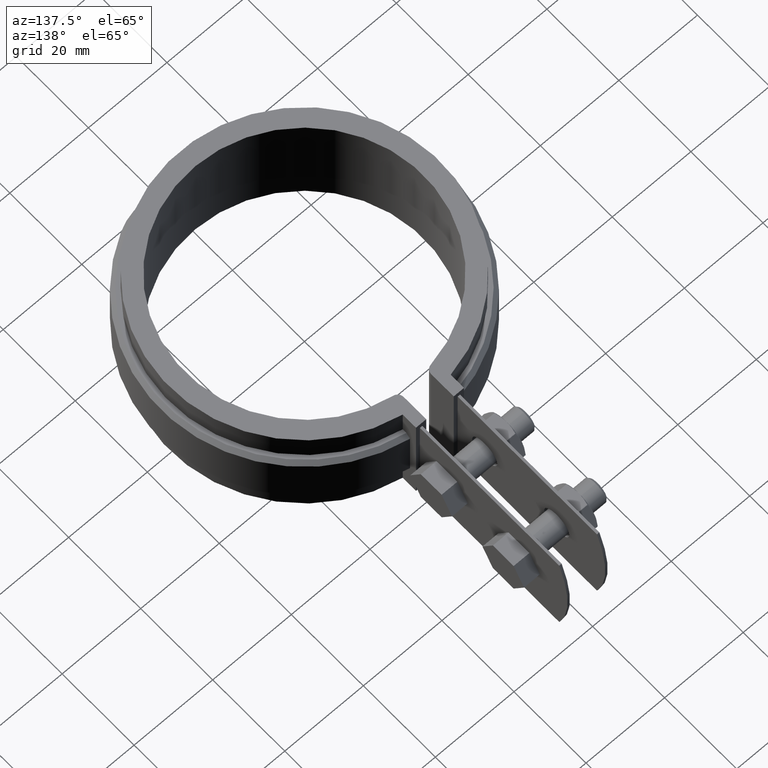
[diagram: clean part render]
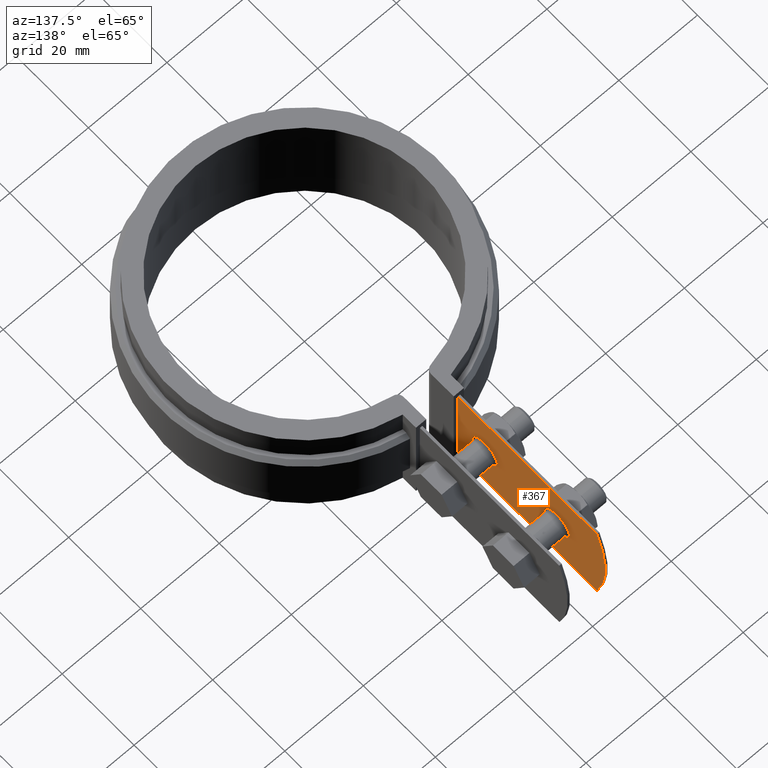
[diagram: same view with one face highlighted and labeled with its STEP entity id]
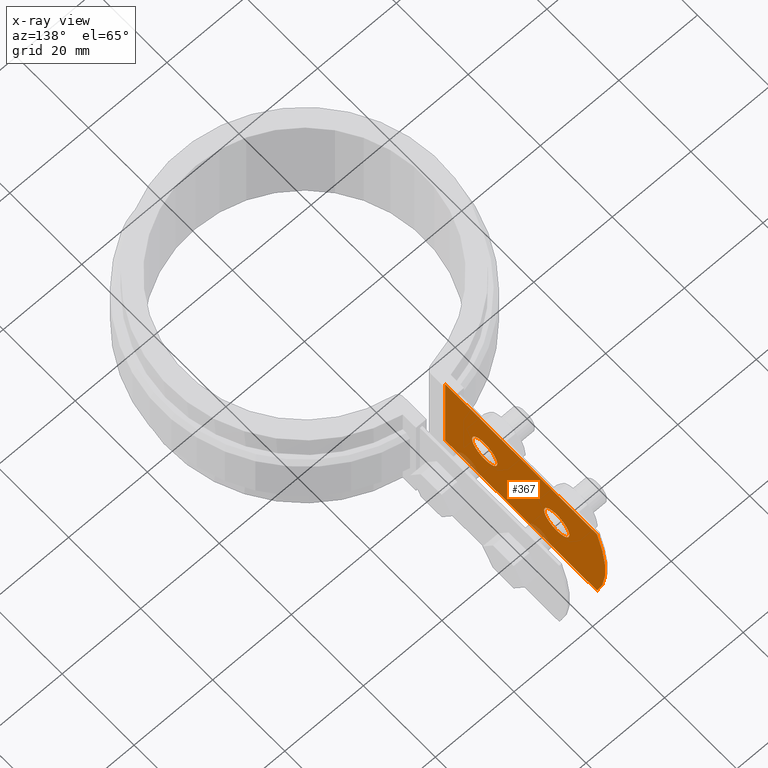
[diagram: x-ray of the same camera — body ghosted, the highlighted face saturated]
A machine part, auxiliary view. The second image highlights one B-rep face of the part: STEP entity #367.
The next image is the same camera in x-ray: the body ghosted, the highlighted face saturated — about 2% of this face is hidden behind the body in this view.
In plain terms, the highlighted planar face has unit normal (1, -0, 0).
Its self-contained STEP definition (entity closure, byte-faithful):
#367 = ADVANCED_FACE( '', ( #635, #636, #637 ), #638, .T. );
#635 = FACE_BOUND( '', #1335, .T. );
#636 = FACE_OUTER_BOUND( '', #1336, .T. );
#637 = FACE_BOUND( '', #1337, .T. );
#638 = PLANE( '', #1338 );
#1335 = EDGE_LOOP( '', ( #2794 ) );
#1336 = EDGE_LOOP( '', ( #2795, #2796, #2797, #2798 ) );
#1337 = EDGE_LOOP( '', ( #2799 ) );
#1338 = AXIS2_PLACEMENT_3D( '', #2800, #2801, #2802 );
#2794 = ORIENTED_EDGE( '', *, *, #4572, .T. );
#2795 = ORIENTED_EDGE( '', *, *, #4559, .T. );
#2796 = ORIENTED_EDGE( '', *, *, #4446, .T. );
#2797 = ORIENTED_EDGE( '', *, *, #4514, .T. );
#2798 = ORIENTED_EDGE( '', *, *, #4550, .F. );
#2799 = ORIENTED_EDGE( '', *, *, #4573, .T. );
#2800 = CARTESIAN_POINT( '', ( -4.50000000000000, 78.6315111874220, 0.000000000000000 ) );
#2801 = DIRECTION( '', ( 1.00000000000000, -6.12303176911189E-017, 0.000000000000000 ) );
#2802 = DIRECTION( '', ( -6.12303176911189E-017, -1.00000000000000, 0.000000000000000 ) );
#4446 = EDGE_CURVE( '', #4963, #4980, #4982, .T. );
#4514 = EDGE_CURVE( '', #4980, #5104, #5106, .T. );
#4550 = EDGE_CURVE( '', #5160, #5104, #5162, .T. );
#4559 = EDGE_CURVE( '', #5160, #4963, #5175, .T. );
#4572 = EDGE_CURVE( '', #5188, #5188, #5189, .F. );
#4573 = EDGE_CURVE( '', #5190, #5190, #5191, .F. );
#4963 = VERTEX_POINT( '', #5834 );
#4980 = VERTEX_POINT( '', #5855 );
#4982 = LINE( '', #5857, #5858 );
#5104 = VERTEX_POINT( '', #6463 );
#5106 = LINE( '', #6465, #6466 );
#5160 = VERTEX_POINT( '', #6875 );
#5162 = LINE( '', #6878, #6879 );
#5175 = CIRCLE( '', #6939, 35.0000000000000 );
#5188 = VERTEX_POINT( '', #7066 );
#5189 = CIRCLE( '', #7067, 3.50000000000000 );
#5190 = VERTEX_POINT( '', #7068 );
#5191 = CIRCLE( '', #7069, 3.50000000000000 );
#5834 = CARTESIAN_POINT( '', ( -4.49999999999999, 76.3232532639770, 0.000000000000000 ) );
#5855 = CARTESIAN_POINT( '', ( -4.50000000000000, 34.1357949958690, 0.000000000000000 ) );
#5857 = CARTESIAN_POINT( '', ( -4.50000000000000, 78.6315111874220, 0.000000000000000 ) );
#5858 = VECTOR( '', #8997, 1000.00000000000 );
#6463 = CARTESIAN_POINT( '', ( -4.50000000000000, 34.1357949958690, -25.0000000000000 ) );
#6465 = CARTESIAN_POINT( '', ( -4.50000000000000, 34.1357949958690, 0.000000000000000 ) );
#6466 = VECTOR( '', #9071, 1000.00000000000 );
#6875 = CARTESIAN_POINT( '', ( -4.49999999999999, 76.3232532639770, -25.0000000000000 ) );
#6878 = CARTESIAN_POINT( '', ( -4.50000000000000, 78.6315111874220, -25.0000000000000 ) );
#6879 = VECTOR( '', #9098, 1000.00000000000 );
#6939 = AXIS2_PLACEMENT_3D( '', #9110, #9111, #9112 );
#7066 = CARTESIAN_POINT( '', ( -4.49999999999999, 68.6315111874220, -12.5000000000000 ) );
#7067 = AXIS2_PLACEMENT_3D( '', #9118, #9119, #9120 );
#7068 = CARTESIAN_POINT( '', ( -4.49999999999999, 48.6315111874220, -12.5000000000000 ) );
#7069 = AXIS2_PLACEMENT_3D( '', #9121, #9122, #9123 );
#8997 = DIRECTION( '', ( -6.12303176911189E-017, -1.00000000000000, 0.000000000000000 ) );
#9071 = DIRECTION( '', ( 0.000000000000000, 0.000000000000000, -1.00000000000000 ) );
#9098 = DIRECTION( '', ( -6.12303176911189E-017, -1.00000000000000, 0.000000000000000 ) );
#9110 = CARTESIAN_POINT( '', ( -4.49999999999999, 43.6315111874220, -12.5000000000000 ) );
#9111 = DIRECTION( '', ( 1.00000000000000, -6.12303176911189E-017, 0.000000000000000 ) );
#9112 = DIRECTION( '', ( 6.12303176911189E-017, 1.00000000000000, 0.000000000000000 ) );
#9118 = CARTESIAN_POINT( '', ( -4.49999999999999, 65.1315111874220, -12.5000000000000 ) );
#9119 = DIRECTION( '', ( 1.00000000000000, -6.12303176911189E-017, 0.000000000000000 ) );
#9120 = DIRECTION( '', ( 6.12303176911189E-017, 1.00000000000000, 0.000000000000000 ) );
#9121 = CARTESIAN_POINT( '', ( -4.49999999999999, 45.1315111874220, -12.5000000000000 ) );
#9122 = DIRECTION( '', ( 1.00000000000000, -6.12303176911189E-017, 0.000000000000000 ) );
#9123 = DIRECTION( '', ( 6.12303176911189E-017, 1.00000000000000, 0.000000000000000 ) );